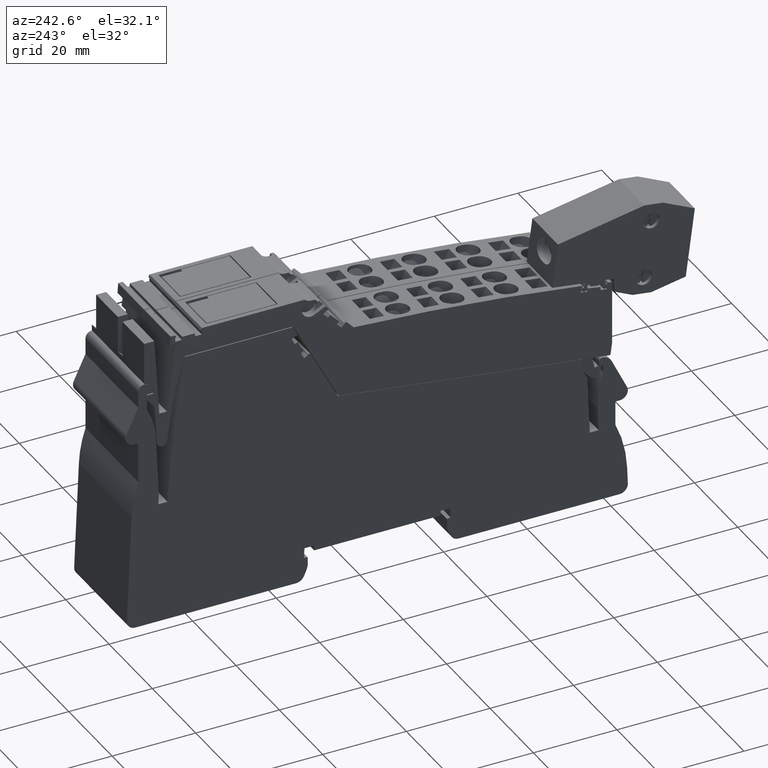
[diagram: clean part render]
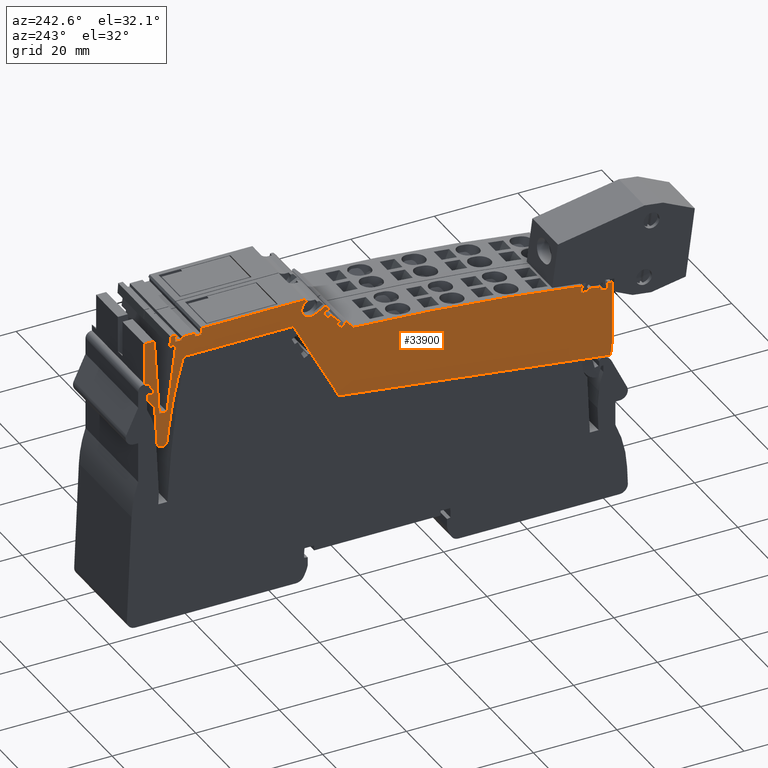
[diagram: same view with one face highlighted and labeled with its STEP entity id]
A machine part, auxiliary view. The second image highlights one B-rep face of the part: STEP entity #33900.
In plain terms, the highlighted planar face has unit normal (1, 0, 0).
Its self-contained STEP definition (entity closure, byte-faithful):
#28740=CARTESIAN_POINT('',(82.6815349965882,79.1094320933787,-47.425));
#28750=DIRECTION('',(0.,-0.,1.));
#28760=DIRECTION('',(0.99144486137381,0.130526192220052,0.));
#28770=AXIS2_PLACEMENT_3D('',#28740,#28750,#28760);
#28780=PLANE('',#28770);
#28790=CARTESIAN_POINT('',(5.79123762688281,-2.8421709430404E-14,-47.425
));
#28800=DIRECTION('',(-0.681998360062363,-0.731353701619297,0.));
#28810=VECTOR('',#28800,1.);
#28820=LINE('',#28790,#28810);
#28830=CARTESIAN_POINT('',(81.7124060542132,81.4154854500132,-47.425));
#28840=VERTEX_POINT('',#28830);
#28850=CARTESIAN_POINT('',(81.0478254756385,80.7028100322594,-47.425));
#28860=VERTEX_POINT('',#28850);
#28870=EDGE_CURVE('',#28840,#28860,#28820,.T.);
#28880=ORIENTED_EDGE('',*,*,#28870,.F.);
#28890=CARTESIAN_POINT('',(84.4997434735127,69.4120950101041,-47.425));
#28900=DIRECTION('',(-0.29237170472236,0.956304755963151,
5.82816236513809E-18));
#28910=VECTOR('',#28900,1.);
#28920=LINE('',#28890,#28910);
#28930=CARTESIAN_POINT('',(81.2267544110084,80.1175598554815,-47.425));
#28940=VERTEX_POINT('',#28930);
#28950=EDGE_CURVE('',#28940,#28860,#28920,.T.);
#28960=ORIENTED_EDGE('',*,*,#28950,.T.);
#28970=CARTESIAN_POINT('',(72.2846363775451,70.5283122750928,-47.425));
#28980=DIRECTION('',(-0.681998360064199,-0.731353701617584,
-2.53969612853764E-19));
#28990=VECTOR('',#28980,1.);
#29000=LINE('',#28970,#28990);
#29010=CARTESIAN_POINT('',(81.4124677620555,80.3167130421773,-47.425));
#29020=VERTEX_POINT('',#29010);
#29030=EDGE_CURVE('',#29020,#28940,#29000,.T.);
#29040=ORIENTED_EDGE('',*,*,#29030,.T.);
#29050=CARTESIAN_POINT('',(92.0414943958454,70.4049853552113,-47.425));
#29060=DIRECTION('',(-0.731353701619242,0.681998360062422,
-6.29825467579363E-18));
#29070=VECTOR('',#29060,1.);
#29080=LINE('',#29050,#29070);
#29090=CARTESIAN_POINT('',(82.195016222788,79.5869747969106,-47.425));
#29100=VERTEX_POINT('',#29090);
#29110=EDGE_CURVE('',#29100,#29020,#29080,.T.);
#29120=ORIENTED_EDGE('',*,*,#29110,.T.);
#29130=CARTESIAN_POINT('',(72.4656350505869,69.1534908599375,-47.425));
#29140=DIRECTION('',(0.681998360062451,0.731353701619215,
2.5396961263959E-19));
#29150=VECTOR('',#29140,1.);
#29160=LINE('',#29130,#29150);
#29170=CARTESIAN_POINT('',(81.1059442929708,78.4190881364081,-47.425));
#29180=VERTEX_POINT('',#29170);
#29190=EDGE_CURVE('',#29180,#29100,#29160,.T.);
#29200=ORIENTED_EDGE('',*,*,#29190,.T.);
#29210=CARTESIAN_POINT('',(91.4612958937313,70.3286007733115,-47.425));
#29220=DIRECTION('',(0.788010753606755,-0.615661475325616,
4.09923168310491E-17));
#29230=VECTOR('',#29220,1.);
#29240=LINE('',#29210,#29230);
#29250=CARTESIAN_POINT('',(80.5126786729696,78.8825980380156,-47.425));
#29260=VERTEX_POINT('',#29250);
#29270=EDGE_CURVE('',#29260,#29180,#29240,.T.);
#29280=ORIENTED_EDGE('',*,*,#29270,.T.);
#29290=CARTESIAN_POINT('',(72.338766821823,70.1171507303451,-47.425));
#29300=DIRECTION('',(0.681998360062455,0.731353701619211,
2.53969612640089E-19));
#29310=VECTOR('',#29300,1.);
#29320=LINE('',#29290,#29310);
#29330=CARTESIAN_POINT('',(78.4666835927826,76.6885369331584,-47.425));
#29340=VERTEX_POINT('',#29330);
#29350=EDGE_CURVE('',#29340,#29260,#29320,.T.);
#29360=ORIENTED_EDGE('',*,*,#29350,.T.);
#29370=CARTESIAN_POINT('',(84.9634529968731,69.4731435270096,-47.425));
#29380=DIRECTION('',(-0.669130606358558,0.743144825477665,
1.32187545408513E-18));
#29390=VECTOR('',#29380,1.);
#29400=LINE('',#29370,#29390);
#29410=CARTESIAN_POINT('',(78.9704485252099,76.1290492946714,-47.425));
#29420=VERTEX_POINT('',#29410);
#29430=EDGE_CURVE('',#29420,#29340,#29400,.T.);
#29440=ORIENTED_EDGE('',*,*,#29430,.T.);
#29450=CARTESIAN_POINT('',(72.4656350505866,69.15349085994,-47.425));
#29460=DIRECTION('',(0.681998360062575,0.7313537016191,
2.53969612654784E-19));
#29470=VECTOR('',#29460,1.);
#29480=LINE('',#29450,#29470);
#29490=CARTESIAN_POINT('',(77.8813765953927,74.9611626341693,-47.425));
#29500=VERTEX_POINT('',#29490);
#29510=EDGE_CURVE('',#29500,#29420,#29480,.T.);
#29520=ORIENTED_EDGE('',*,*,#29510,.T.);
#29530=CARTESIAN_POINT('',(83.9146294887447,69.3350632926361,-47.425));
#29540=DIRECTION('',(0.731353701619242,-0.681998360062422,
6.29825467579363E-18));
#29550=VECTOR('',#29540,1.);
#29560=LINE('',#29530,#29550);
#29570=CARTESIAN_POINT('',(77.0988281346601,75.6909008794362,-47.425));
#29580=VERTEX_POINT('',#29570);
#29590=EDGE_CURVE('',#29580,#29500,#29560,.T.);
#29600=ORIENTED_EDGE('',*,*,#29590,.T.);
#29610=CARTESIAN_POINT('',(72.2846363775469,70.5283122750789,-47.425));
#29620=DIRECTION('',(-0.681998360064581,-0.731353701617229,
-2.53969612900505E-19));
#29630=VECTOR('',#29620,1.);
#29640=LINE('',#29610,#29630);
#29650=CARTESIAN_POINT('',(77.2845414857078,75.8900540661325,-47.425));
#29660=VERTEX_POINT('',#29650);
#29670=EDGE_CURVE('',#29660,#29580,#29640,.T.);
#29680=ORIENTED_EDGE('',*,*,#29670,.T.);
#29690=CARTESIAN_POINT('',(71.3998893619735,77.248633057342,-47.425));
#29700=DIRECTION('',(0.974370064785244,-0.224951054343824,
3.6059170670998E-17));
#29710=VECTOR('',#29700,1.);
#29720=LINE('',#29690,#29710);
#29730=CARTESIAN_POINT('',(76.688235497364,76.0277221510188,-47.425));
#29740=VERTEX_POINT('',#29730);
#29750=EDGE_CURVE('',#29740,#29660,#29720,.T.);
#29760=ORIENTED_EDGE('',*,*,#29750,.T.);
#29770=CARTESIAN_POINT('',(72.1949828292245,71.2092985834693,-47.425));
#29780=DIRECTION('',(-0.681998360062363,-0.731353701619297,
-2.53969612628868E-19));
#29790=VECTOR('',#29780,1.);
#29800=LINE('',#29770,#29790);
#29810=CARTESIAN_POINT('',(74.9791020504745,74.1949009213182,-47.425));
#29820=VERTEX_POINT('',#29810);
#29830=EDGE_CURVE('',#29740,#29820,#29800,.T.);
#29840=ORIENTED_EDGE('',*,*,#29830,.F.);
#29850=CARTESIAN_POINT('',(104.084452057128,-500.06799932646,-47.425));
#29860=DIRECTION('',(-8.85927774418128E-33,0.,1.));
#29870=DIRECTION('',(0.99144486137381,0.130526192220052,0.));
#29880=AXIS2_PLACEMENT_3D('',#29850,#29860,#29870);
#29890=CIRCLE('',#29880,575.);
#29900=CARTESIAN_POINT('',(20.4055873620426,68.8105884260945,-47.425));
#29910=VERTEX_POINT('',#29900);
#29920=EDGE_CURVE('',#29820,#29910,#29890,.T.);
#29930=ORIENTED_EDGE('',*,*,#29920,.F.);
#29940=CARTESIAN_POINT('',(17.182413559422,60.5496003959994,-47.425));
#29950=DIRECTION('',(0.363481180558057,0.931601541100122,
-1.0997552478088E-17));
#29960=VECTOR('',#29950,1.);
#29970=LINE('',#29940,#29960);
#29980=CARTESIAN_POINT('',(20.186856520418,68.2499817150929,-47.425));
#29990=VERTEX_POINT('',#29980);
#30000=EDGE_CURVE('',#29990,#29910,#29970,.T.);
#30010=ORIENTED_EDGE('',*,*,#30000,.T.);
#30020=CARTESIAN_POINT('',(71.5515172321112,76.0969050391398,-47.425));
#30030=DIRECTION('',(-0.988531191077486,-0.151016834382553,
3.70508301048238E-19));
#30040=VECTOR('',#30030,1.);
#30050=LINE('',#30020,#30040);
#30060=CARTESIAN_POINT('',(20.4560410974773,68.2911047500148,-47.425));
#30070=VERTEX_POINT('',#30060);
#30080=EDGE_CURVE('',#30070,#29990,#30050,.T.);
#30090=ORIENTED_EDGE('',*,*,#30080,.T.);
#30100=CARTESIAN_POINT('',(21.5508426617955,61.1247149978603,-47.425));
#30110=DIRECTION('',(-0.15101683438897,0.988531191076505,
2.32245661692122E-18));
#30120=VECTOR('',#30110,1.);
#30130=LINE('',#30100,#30120);
#30140=CARTESIAN_POINT('',(20.6176291102735,67.2333763755631,-47.425));
#30150=VERTEX_POINT('',#30140);
#30160=EDGE_CURVE('',#30150,#30070,#30130,.T.);
#30170=ORIENTED_EDGE('',*,*,#30160,.T.);
#30180=CARTESIAN_POINT('',(71.6912101768906,75.0358317793135,-47.425));
#30190=DIRECTION('',(0.9885311910765,0.151016834389004,
-3.70508301168919E-19));
#30200=VECTOR('',#30190,1.);
#30210=LINE('',#30180,#30200);
#30220=CARTESIAN_POINT('',(19.0390599596794,66.9922200841493,-47.425));
#30230=VERTEX_POINT('',#30220);
#30240=EDGE_CURVE('',#30230,#30150,#30210,.T.);
#30250=ORIENTED_EDGE('',*,*,#30240,.T.);
#30260=CARTESIAN_POINT('',(20.5015098805976,60.9865677164153,-47.425));
#30270=DIRECTION('',(0.236598339928087,-0.971607547080236,
8.15825325755319E-18));
#30280=VECTOR('',#30270,1.);
#30290=LINE('',#30260,#30280);
#30300=CARTESIAN_POINT('',(18.8609333793172,67.7237092816986,-47.425));
#30310=VERTEX_POINT('',#30300);
#30320=EDGE_CURVE('',#30310,#30230,#30290,.T.);
#30330=ORIENTED_EDGE('',*,*,#30320,.T.);
#30340=CARTESIAN_POINT('',(71.5932945613605,75.7795747186763,-47.425));
#30350=DIRECTION('',(0.988531191076507,0.151016834388962,
-3.70508301168148E-19));
#30360=VECTOR('',#30350,1.);
#30370=LINE('',#30340,#30360);
#30380=CARTESIAN_POINT('',(15.8953398060877,67.2706587785318,-47.425));
#30390=VERTEX_POINT('',#30380);
#30400=EDGE_CURVE('',#30390,#30310,#30370,.T.);
#30410=ORIENTED_EDGE('',*,*,#30400,.T.);
#30420=CARTESIAN_POINT('',(16.3354880816018,60.438100541574,-47.425));
#30430=DIRECTION('',(-0.0642859995531953,0.997931515817316,
-9.33869096267743E-19));
#30440=VECTOR('',#30430,1.);
#30450=LINE('',#30420,#30440);
#30460=CARTESIAN_POINT('',(15.9437384773084,66.5193511894665,-47.425));
#30470=VERTEX_POINT('',#30460);
#30480=EDGE_CURVE('',#30470,#30390,#30450,.T.);
#30490=ORIENTED_EDGE('',*,*,#30480,.T.);
#30500=CARTESIAN_POINT('',(71.6912101768911,75.0358317793091,-47.425));
#30510=DIRECTION('',(0.988531191076512,0.151016834388925,
-3.70508301167481E-19));
#30520=VECTOR('',#30510,1.);
#30530=LINE('',#30500,#30520);
#30540=CARTESIAN_POINT('',(14.3651693267146,66.2781948980529,-47.425));
#30550=VERTEX_POINT('',#30540);
#30560=EDGE_CURVE('',#30550,#30470,#30530,.T.);
#30570=ORIENTED_EDGE('',*,*,#30560,.T.);
#30580=CARTESIAN_POINT('',(15.2786105398164,60.2989599735539,-47.425));
#30590=DIRECTION('',(0.151016834388983,-0.988531191076503,
-2.32245661691962E-18));
#30600=VECTOR('',#30590,1.);
#30610=LINE('',#30580,#30600);
#30620=CARTESIAN_POINT('',(14.2035813139184,67.335923272505,-47.425));
#30630=VERTEX_POINT('',#30620);
#30640=EDGE_CURVE('',#30630,#30550,#30610,.T.);
#30650=ORIENTED_EDGE('',*,*,#30640,.T.);
#30660=CARTESIAN_POINT('',(71.551517232091,76.0969050392932,-47.425));
#30670=DIRECTION('',(-0.988531191076977,-0.151016834385886,
3.70508301110601E-19));
#30680=VECTOR('',#30670,1.);
#30690=LINE('',#30660,#30680);
#30700=CARTESIAN_POINT('',(14.472765890979,67.3770463074278,-47.425));
#30710=VERTEX_POINT('',#30700);
#30720=EDGE_CURVE('',#30710,#30630,#30690,.T.);
#30730=ORIENTED_EDGE('',*,*,#30720,.T.);
#30740=CARTESIAN_POINT('',(19.676851164994,60.8779993368489,-47.425));
#30750=DIRECTION('',(0.625050010517978,-0.780584706711242,
2.1035385032723E-17));
#30760=VECTOR('',#30750,1.);
#30770=LINE('',#30740,#30760);
#30780=CARTESIAN_POINT('',(14.0966316585303,67.8467761283693,-47.425));
#30790=VERTEX_POINT('',#30780);
#30800=EDGE_CURVE('',#30790,#30710,#30770,.T.);
#30810=ORIENTED_EDGE('',*,*,#30800,.T.);
#30820=CARTESIAN_POINT('',(104.084452057128,-500.06799932646,-47.425));
#30830=DIRECTION('',(-8.85927774418128E-33,0.,1.));
#30840=DIRECTION('',(0.99144486137381,0.130526192220052,0.));
#30850=AXIS2_PLACEMENT_3D('',#30820,#30830,#30840);
#30860=CIRCLE('',#30850,575.);
#30870=CARTESIAN_POINT('',(13.1829347668366,67.701244428714,-47.425));
#30880=VERTEX_POINT('',#30870);
#30890=EDGE_CURVE('',#30790,#30880,#30860,.T.);
#30900=ORIENTED_EDGE('',*,*,#30890,.F.);
#30910=CARTESIAN_POINT('',(13.1829347668366,60.0230590239077,-47.425));
#30920=DIRECTION('',(8.32667268468867E-17,-1.,-1.38777878078145E-17));
#30930=VECTOR('',#30920,1.);
#30940=LINE('',#30910,#30930);
#30950=CARTESIAN_POINT('',(13.1829347668366,52.4942181245001,-47.425));
#30960=VERTEX_POINT('',#30950);
#30970=EDGE_CURVE('',#30880,#30960,#30940,.T.);
#30980=ORIENTED_EDGE('',*,*,#30970,.F.);
#30990=CARTESIAN_POINT('',(12.2086310606799,59.8947895075835,-47.425));
#31000=DIRECTION('',(0.130526192220052,-0.99144486137381,
-3.08148791101958E-32));
#31010=VECTOR('',#31000,1.);
#31020=LINE('',#30990,#31010);
#31030=CARTESIAN_POINT('',(13.5745133434982,49.5198835403683,-47.425));
#31040=VERTEX_POINT('',#31030);
#31050=EDGE_CURVE('',#30960,#31040,#31020,.T.);
#31060=ORIENTED_EDGE('',*,*,#31050,.F.);
#31070=CARTESIAN_POINT('',(74.0030776442306,57.4754549561902,-47.425));
#31080=DIRECTION('',(0.991444861373789,0.130526192220212,
1.98588366815474E-32));
#31090=VECTOR('',#31080,1.);
#31100=LINE('',#31070,#31090);
#31110=CARTESIAN_POINT('',(78.5141517634814,58.0693491307923,-47.425));
#31120=VERTEX_POINT('',#31110);
#31130=EDGE_CURVE('',#31040,#31120,#31100,.T.);
#31140=ORIENTED_EDGE('',*,*,#31130,.F.);
#31150=CARTESIAN_POINT('',(84.5486179871549,69.4185294618935,-47.425));
#31160=DIRECTION('',(0.469471562785891,0.882947592858927,
1.98252351633153E-18));
#31170=VECTOR('',#31160,1.);
#31180=LINE('',#31150,#31170);
#31190=CARTESIAN_POINT('',(89.4233780495347,78.5866197234246,-47.425));
#31200=VERTEX_POINT('',#31190);
#31210=EDGE_CURVE('',#31120,#31200,#31180,.T.);
#31220=ORIENTED_EDGE('',*,*,#31210,.F.);
#31230=CARTESIAN_POINT('',(71.2237400756451,78.5866197234246,-47.425));
#31240=DIRECTION('',(1.,5.55111512312578E-17,1.14423563262215E-17));
#31250=VECTOR('',#31240,1.);
#31260=LINE('',#31230,#31250);
#31270=CARTESIAN_POINT('',(115.64625629166,78.5866197234246,-47.425));
#31280=VERTEX_POINT('',#31270);
#31290=EDGE_CURVE('',#31200,#31280,#31260,.T.);
#31300=ORIENTED_EDGE('',*,*,#31290,.F.);
#31310=CARTESIAN_POINT('',(15.2913513139149,48.7372805865571,-47.425));
#31320=DIRECTION('',(-8.85927774418128E-33,0.,1.));
#31330=DIRECTION('',(0.99144486137381,0.130526192220052,0.));
#31340=AXIS2_PLACEMENT_3D('',#31310,#31320,#31330);
#31350=CIRCLE('',#31340,104.7);
#31360=CARTESIAN_POINT('',(119.095628299753,62.4033729119965,-47.425));
#31370=VERTEX_POINT('',#31360);
#31380=EDGE_CURVE('',#31370,#31280,#31350,.T.);
#31390=ORIENTED_EDGE('',*,*,#31380,.T.);
#31400=CARTESIAN_POINT('',(117.599219824716,73.769723740575,-47.425));
#31410=DIRECTION('',(-0.130526192220052,0.99144486137381,0.));
#31420=VECTOR('',#31410,1.);
#31430=LINE('',#31400,#31420);
#31440=CARTESIAN_POINT('',(119.598580203269,58.5830739223591,-47.425));
#31450=VERTEX_POINT('',#31440);
#31460=EDGE_CURVE('',#31450,#31370,#31430,.T.);
#31470=ORIENTED_EDGE('',*,*,#31460,.T.);
#31480=CARTESIAN_POINT('',(120.788314036918,58.7397053530232,-47.425));
#31490=DIRECTION('',(-1.96444854327498E-32,8.0118685686509E-32,1.));
#31500=DIRECTION('',(0.99144486137381,0.130526192220052,0.));
#31510=AXIS2_PLACEMENT_3D('',#31480,#31490,#31500);
#31520=CIRCLE('',#31510,1.2);
#31530=CARTESIAN_POINT('',(121.985744744804,58.6612215979472,-47.425));
#31540=VERTEX_POINT('',#31530);
#31550=EDGE_CURVE('',#31450,#31540,#31520,.T.);
#31560=ORIENTED_EDGE('',*,*,#31550,.F.);
#31570=CARTESIAN_POINT('',(123.022808223681,74.4837526991847,-47.425));
#31580=DIRECTION('',(0.0654031292301337,0.997858923238604,
2.18873597126985E-17));
#31590=VECTOR('',#31580,1.);
#31600=LINE('',#31570,#31590);
#31610=CARTESIAN_POINT('',(122.597772882635,67.9989665315018,-47.425));
#31620=VERTEX_POINT('',#31610);
#31630=EDGE_CURVE('',#31540,#31620,#31600,.T.);
#31640=ORIENTED_EDGE('',*,*,#31630,.F.);
#31650=CARTESIAN_POINT('',(65.5398651456152,-2.8421709430404E-14,-47.425
));
#31660=DIRECTION('',(-0.642787609686539,-0.766044443118978,0.));
#31670=VECTOR('',#31660,1.);
#31680=LINE('',#31650,#31670);
#31690=CARTESIAN_POINT('',(124.476285095723,70.2376902101819,-47.425));
#31700=VERTEX_POINT('',#31690);
#31710=EDGE_CURVE('',#31700,#31620,#31680,.T.);
#31720=ORIENTED_EDGE('',*,*,#31710,.T.);
#31730=CARTESIAN_POINT('',(124.476285095723,-2.8421709430404E-14,-47.425
));
#31740=DIRECTION('',(0.,-1.,0.));
#31750=VECTOR('',#31740,1.);
#31760=LINE('',#31730,#31750);
#31770=CARTESIAN_POINT('',(124.476285095723,71.3866197234247,-47.425));
#31780=VERTEX_POINT('',#31770);
#31790=EDGE_CURVE('',#31780,#31700,#31760,.T.);
#31800=ORIENTED_EDGE('',*,*,#31790,.T.);
#31810=CARTESIAN_POINT('',(72.1716380582743,71.3866197234251,-47.425));
#31820=DIRECTION('',(-1.,5.99520433297585E-15,1.27111376329558E-32));
#31830=VECTOR('',#31820,1.);
#31840=LINE('',#31810,#31830);
#31850=CARTESIAN_POINT('',(122.81981140365,71.3866197234248,-47.425));
#31860=VERTEX_POINT('',#31850);
#31870=EDGE_CURVE('',#31780,#31860,#31840,.T.);
#31880=ORIENTED_EDGE('',*,*,#31870,.F.);
#31890=CARTESIAN_POINT('',(123.022808223681,74.4837526991847,-47.425));
#31900=DIRECTION('',(-0.0654031292301295,-0.997858923238604,
-2.18873597126979E-17));
#31910=VECTOR('',#31900,1.);
#31920=LINE('',#31890,#31910);
#31930=CARTESIAN_POINT('',(122.87897695389,72.2893115815919,-47.425));
#31940=VERTEX_POINT('',#31930);
#31950=EDGE_CURVE('',#31940,#31860,#31920,.T.);
#31960=ORIENTED_EDGE('',*,*,#31950,.T.);
#31970=CARTESIAN_POINT('',(77.9657366776979,27.3760713054033,-47.425));
#31980=DIRECTION('',(0.707106781186573,0.707106781186522,
-2.44267117772998E-17));
#31990=VECTOR('',#31980,1.);
#32000=LINE('',#31970,#31990);
#32010=CARTESIAN_POINT('',(125.076285095723,74.4866197234248,-47.425));
#32020=VERTEX_POINT('',#32010);
#32030=EDGE_CURVE('',#31940,#32020,#32000,.T.);
#32040=ORIENTED_EDGE('',*,*,#32030,.F.);
#32050=CARTESIAN_POINT('',(125.076285095723,74.754098058127,-47.425));
#32060=DIRECTION('',(2.80331313717852E-15,1.,1.38777878078148E-17));
#32070=VECTOR('',#32060,1.);
#32080=LINE('',#32050,#32070);
#32090=CARTESIAN_POINT('',(125.076285095723,84.4866197234247,-47.425));
#32100=VERTEX_POINT('',#32090);
#32110=EDGE_CURVE('',#32020,#32100,#32080,.T.);
#32120=ORIENTED_EDGE('',*,*,#32110,.F.);
#32130=CARTESIAN_POINT('',(70.4469903398795,84.4866197234242,-47.425));
#32140=DIRECTION('',(-1.,-9.10382880192628E-15,-1.14423563262215E-17));
#32150=VECTOR('',#32140,1.);
#32160=LINE('',#32130,#32150);
#32170=CARTESIAN_POINT('',(122.676285095722,84.4866197234247,-47.425));
#32180=VERTEX_POINT('',#32170);
#32190=EDGE_CURVE('',#32100,#32180,#32160,.T.);
#32200=ORIENTED_EDGE('',*,*,#32190,.F.);
#32210=CARTESIAN_POINT('',(117.138739477497,-2.8421709430404E-14,-47.425
));
#32220=DIRECTION('',(0.0654031292301221,0.997858923238605,0.));
#32230=VECTOR('',#32220,1.);
#32240=LINE('',#32210,#32230);
#32250=CARTESIAN_POINT('',(121.463731033641,65.9866197234248,-47.425));
#32260=VERTEX_POINT('',#32250);
#32270=EDGE_CURVE('',#32260,#32180,#32240,.T.);
#32280=ORIENTED_EDGE('',*,*,#32270,.T.);
#32290=CARTESIAN_POINT('',(7.105427357601E-15,65.9866197234254,-47.425))
;
#32300=DIRECTION('',(1.,-5.30131494258512E-15,0.));
#32310=VECTOR('',#32300,1.);
#32320=LINE('',#32290,#32310);
#32330=CARTESIAN_POINT('',(119.632513868136,65.9866197234248,-47.425));
#32340=VERTEX_POINT('',#32330);
#32350=EDGE_CURVE('',#32340,#32260,#32320,.T.);
#32360=ORIENTED_EDGE('',*,*,#32350,.T.);
#32370=CARTESIAN_POINT('',(128.319817162075,-2.8421709430404E-14,-47.425
));
#32380=DIRECTION('',(0.130526192220052,-0.99144486137381,0.));
#32390=VECTOR('',#32380,1.);
#32400=LINE('',#32370,#32390);
#32410=CARTESIAN_POINT('',(117.512908656979,82.0866197234256,-47.425));
#32420=VERTEX_POINT('',#32410);
#32430=EDGE_CURVE('',#32420,#32340,#32400,.T.);
#32440=ORIENTED_EDGE('',*,*,#32430,.T.);
#32450=CARTESIAN_POINT('',(70.7629563340898,82.0866197234204,-47.425));
#32460=DIRECTION('',(-1.,-1.11688436277291E-13,-1.14423563262215E-17));
#32470=VECTOR('',#32460,1.);
#32480=LINE('',#32450,#32470);
#32490=CARTESIAN_POINT('',(118.933589406479,82.0866197234257,-47.425));
#32500=VERTEX_POINT('',#32490);
#32510=EDGE_CURVE('',#32500,#32420,#32480,.T.);
#32520=ORIENTED_EDGE('',*,*,#32510,.T.);
#32530=CARTESIAN_POINT('',(119.46262829087,74.0150461191697,-47.425));
#32540=DIRECTION('',(-0.0654031292301207,0.997858923238605,
-1.07067800097519E-18));
#32550=VECTOR('',#32540,1.);
#32560=LINE('',#32530,#32550);
#32570=CARTESIAN_POINT('',(118.776285095723,84.4866197234246,-47.425));
#32580=VERTEX_POINT('',#32570);
#32590=EDGE_CURVE('',#32500,#32580,#32560,.T.);
#32600=ORIENTED_EDGE('',*,*,#32590,.F.);
#32610=CARTESIAN_POINT('',(70.4469903398795,84.4866197234245,-47.425));
#32620=DIRECTION('',(-1.,-3.33066907387547E-15,-1.14423563262215E-17));
#32630=VECTOR('',#32620,1.);
#32640=LINE('',#32610,#32630);
#32650=CARTESIAN_POINT('',(117.672473117258,84.4866197234246,-47.425));
#32660=VERTEX_POINT('',#32650);
#32670=EDGE_CURVE('',#32580,#32660,#32640,.T.);
#32680=ORIENTED_EDGE('',*,*,#32670,.F.);
#32690=CARTESIAN_POINT('',(110.982106139763,72.8985641971313,-47.425));
#32700=DIRECTION('',(0.500000000000253,0.866025403784292,
-2.20343974524871E-17));
#32710=VECTOR('',#32700,1.);
#32720=LINE('',#32690,#32710);
#32730=CARTESIAN_POINT('',(117.366477474588,83.9566197234262,-47.425));
#32740=VERTEX_POINT('',#32730);
#32750=EDGE_CURVE('',#32740,#32660,#32720,.T.);
#32760=ORIENTED_EDGE('',*,*,#32750,.T.);
#32770=CARTESIAN_POINT('',(70.5167661635693,83.9566197236635,-47.425));
#32780=DIRECTION('',(-1.,5.06689135093552E-12,-1.14423563262215E-17));
#32790=VECTOR('',#32780,1.);
#32800=LINE('',#32770,#32790);
#32810=CARTESIAN_POINT('',(117.638785095723,83.9566197234248,-47.425));
#32820=VERTEX_POINT('',#32810);
#32830=EDGE_CURVE('',#32820,#32740,#32800,.T.);
#32840=ORIENTED_EDGE('',*,*,#32830,.T.);
#32850=CARTESIAN_POINT('',(117.638785095723,73.7749326073208,-47.425));
#32860=DIRECTION('',(-5.49282841433296E-14,1.,1.38777878078077E-17));
#32870=VECTOR('',#32860,1.);
#32880=LINE('',#32850,#32870);
#32890=CARTESIAN_POINT('',(117.638785095723,82.8866197234249,-47.425));
#32900=VERTEX_POINT('',#32890);
#32910=EDGE_CURVE('',#32900,#32820,#32880,.T.);
#32920=ORIENTED_EDGE('',*,*,#32910,.T.);
#32930=CARTESIAN_POINT('',(70.6576343360198,82.8866197234211,-47.425));
#32940=DIRECTION('',(1.,8.06021915877864E-14,1.14423563262215E-17));
#32950=VECTOR('',#32940,1.);
#32960=LINE('',#32930,#32950);
#32970=CARTESIAN_POINT('',(116.041901593367,82.8866197234247,-47.425));
#32980=VERTEX_POINT('',#32970);
#32990=EDGE_CURVE('',#32980,#32900,#32960,.T.);
#33000=ORIENTED_EDGE('',*,*,#32990,.T.);
#33010=CARTESIAN_POINT('',(116.848177222998,73.6708471062643,-47.425));
#33020=DIRECTION('',(0.0871557427473462,-0.996194698091773,
3.73460439312547E-18));
#33030=VECTOR('',#33020,1.);
#33040=LINE('',#33010,#33030);
#33050=CARTESIAN_POINT('',(115.976285095723,83.6366197234249,-47.425));
#33060=VERTEX_POINT('',#33050);
#33070=EDGE_CURVE('',#33060,#32980,#33040,.T.);
#33080=ORIENTED_EDGE('',*,*,#33070,.T.);
#33090=CARTESIAN_POINT('',(70.5588949628286,83.6366197234257,-47.425));
#33100=DIRECTION('',(1.,-1.86795023893183E-14,1.14423563262215E-17));
#33110=VECTOR('',#33100,1.);
#33120=LINE('',#33090,#33110);
#33130=CARTESIAN_POINT('',(112.976285095723,83.6366197234249,-47.425));
#33140=VERTEX_POINT('',#33130);
#33150=EDGE_CURVE('',#33140,#33060,#33120,.T.);
#33160=ORIENTED_EDGE('',*,*,#33150,.T.);
#33170=CARTESIAN_POINT('',(112.049116906709,73.0390388295523,-47.425));
#33180=DIRECTION('',(0.087155742747754,0.996194698091737,
1.06734982970826E-17));
#33190=VECTOR('',#33180,1.);
#33200=LINE('',#33170,#33190);
#33210=CARTESIAN_POINT('',(112.910668598078,82.886619723425,-47.425));
#33220=VERTEX_POINT('',#33210);
#33230=EDGE_CURVE('',#33220,#33140,#33200,.T.);
#33240=ORIENTED_EDGE('',*,*,#33230,.T.);
#33250=CARTESIAN_POINT('',(70.6576343360199,82.8866197234199,-47.425));
#33260=DIRECTION('',(1.,1.19126930542279E-13,1.14423563262215E-17));
#33270=VECTOR('',#33260,1.);
#33280=LINE('',#33250,#33270);
#33290=CARTESIAN_POINT('',(111.313785095723,82.8866197234248,-47.425));
#33300=VERTEX_POINT('',#33290);
#33310=EDGE_CURVE('',#33300,#33220,#33280,.T.);
#33320=ORIENTED_EDGE('',*,*,#33310,.T.);
#33330=CARTESIAN_POINT('',(111.313785095722,72.9422305600803,-47.425));
#33340=DIRECTION('',(-9.34252675222069E-14,-1.,-1.38777878078259E-17));
#33350=VECTOR('',#33340,1.);
#33360=LINE('',#33330,#33350);
#33370=CARTESIAN_POINT('',(111.313785095723,83.9566197234249,-47.425));
#33380=VERTEX_POINT('',#33370);
#33390=EDGE_CURVE('',#33380,#33300,#33360,.T.);
#33400=ORIENTED_EDGE('',*,*,#33390,.T.);
#33410=CARTESIAN_POINT('',(70.5167661636283,83.9566197232153,-47.425));
#33420=DIRECTION('',(-1.,-5.1373627574236E-12,-1.14423563262215E-17));
#33430=VECTOR('',#33420,1.);
#33440=LINE('',#33410,#33430);
#33450=CARTESIAN_POINT('',(111.586092716858,83.9566197234263,-47.425));
#33460=VERTEX_POINT('',#33450);
#33470=EDGE_CURVE('',#33460,#33380,#33440,.T.);
#33480=ORIENTED_EDGE('',*,*,#33470,.T.);
#33490=CARTESIAN_POINT('',(117.476804588516,73.7536074689866,-47.425));
#33500=DIRECTION('',(0.500000000000819,-0.866025403783966,
3.34767537788399E-17));
#33510=VECTOR('',#33500,1.);
#33520=LINE('',#33490,#33510);
#33530=CARTESIAN_POINT('',(111.280097074187,84.4866197234245,-47.425));
#33540=VERTEX_POINT('',#33530);
#33550=EDGE_CURVE('',#33540,#33460,#33520,.T.);
#33560=ORIENTED_EDGE('',*,*,#33550,.T.);
#33570=CARTESIAN_POINT('',(7.105427357601E-15,84.4866197234245,-47.425))
;
#33580=DIRECTION('',(-1.,0.,0.));
#33590=VECTOR('',#33580,1.);
#33600=LINE('',#33570,#33590);
#33610=CARTESIAN_POINT('',(86.6847904689085,84.4866197234245,-47.425));
#33620=VERTEX_POINT('',#33610);
#33630=EDGE_CURVE('',#33540,#33620,#33600,.T.);
#33640=ORIENTED_EDGE('',*,*,#33630,.F.);
#33650=CARTESIAN_POINT('',(37.9064178286642,-2.8421709430404E-14,-47.425
));
#33660=DIRECTION('',(-0.500000000000028,-0.866025403784423,0.));
#33670=VECTOR('',#33660,1.);
#33680=LINE('',#33650,#33670);
#33690=CARTESIAN_POINT('',(86.3233628187633,83.8606086701127,-47.425));
#33700=VERTEX_POINT('',#33690);
#33710=EDGE_CURVE('',#33620,#33700,#33680,.T.);
#33720=ORIENTED_EDGE('',*,*,#33710,.F.);
#33730=CARTESIAN_POINT('',(85.2483628187626,81.9986540519759,-47.425));
#33740=DIRECTION('',(-8.85927774418128E-33,0.,1.));
#33750=DIRECTION('',(0.99144486137381,0.130526192220052,
8.7834853949519E-33));
#33760=AXIS2_PLACEMENT_3D('',#33730,#33740,#33750);
#33770=CIRCLE('',#33760,2.15000000000051);
#33780=CARTESIAN_POINT('',(84.2556033003078,80.0915807606424,-47.425));
#33790=VERTEX_POINT('',#33780);
#33800=EDGE_CURVE('',#33790,#33700,#33770,.T.);
#33810=ORIENTED_EDGE('',*,*,#33800,.T.);
#33820=CARTESIAN_POINT('',(7.105427357601E-15,123.952271663143,-47.425))
;
#33830=DIRECTION('',(0.887010833178214,-0.461748613235049,0.));
#33840=VECTOR('',#33830,1.);
#33850=LINE('',#33820,#33840);
#33860=EDGE_CURVE('',#28840,#33790,#33850,.T.);
#33870=ORIENTED_EDGE('',*,*,#33860,.T.);
#33880=EDGE_LOOP('',(#33870,#33810,#33720,#33640,#33560,#33480,#33400,
#33320,#33240,#33160,#33080,#33000,#32920,#32840,#32760,#32680,#32600,
#32520,#32440,#32360,#32280,#32200,#32120,#32040,#31960,#31880,#31800,
#31720,#31640,#31560,#31470,#31390,#31300,#31220,#31140,#31060,#30980,
#30900,#30810,#30730,#30650,#30570,#30490,#30410,#30330,#30250,#30170,
#30090,#30010,#29930,#29840,#29760,#29680,#29600,#29520,#29440,#29360,
#29280,#29200,#29120,#29040,#28960,#28880));
#33890=FACE_OUTER_BOUND('',#33880,.T.);
#33900=ADVANCED_FACE('',(#33890),#28780,.F.);